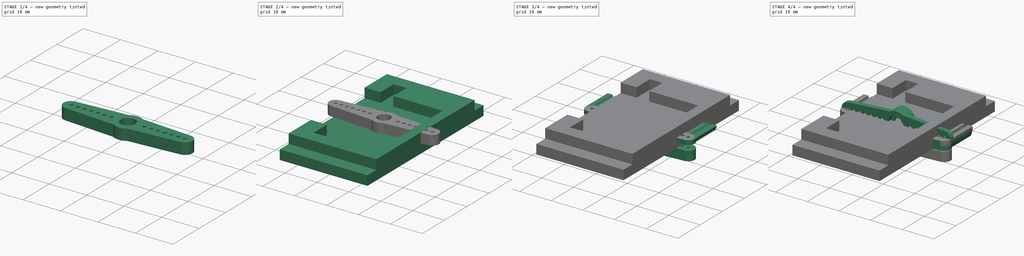
[diagram: build sequence overview — one tinted view per stage of 4, left to right]
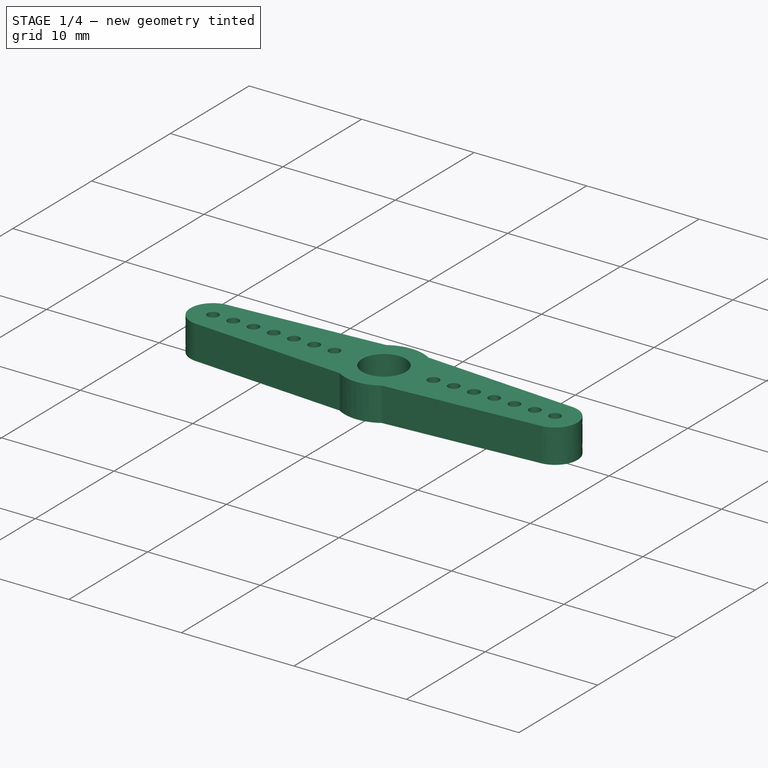
[diagram: stage 1 of 4 — iso view after this stage's code; geometry added in this stage tinted green]
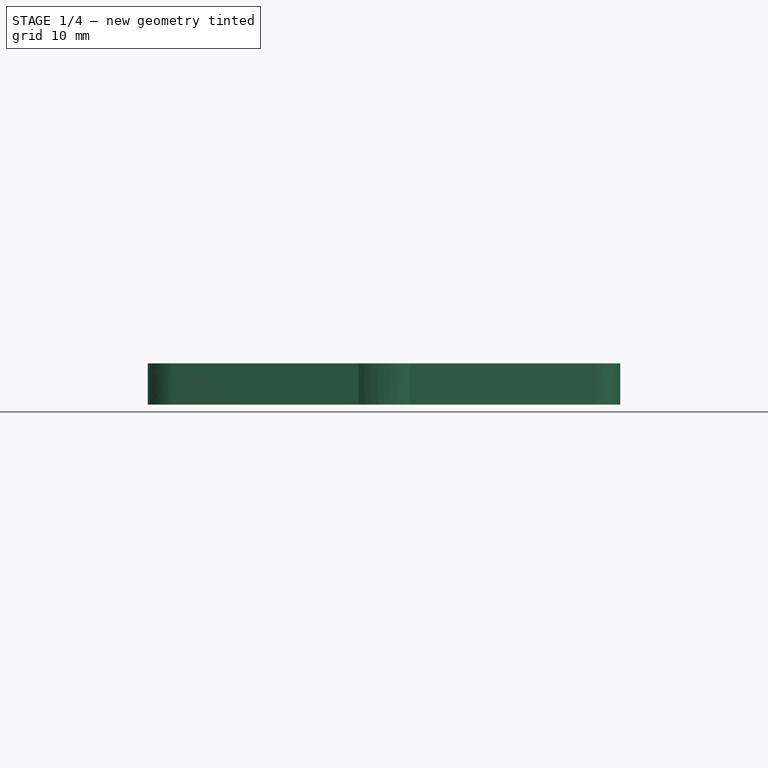
[diagram: stage 1 of 4 — front view after this stage's code; geometry added in this stage tinted green]
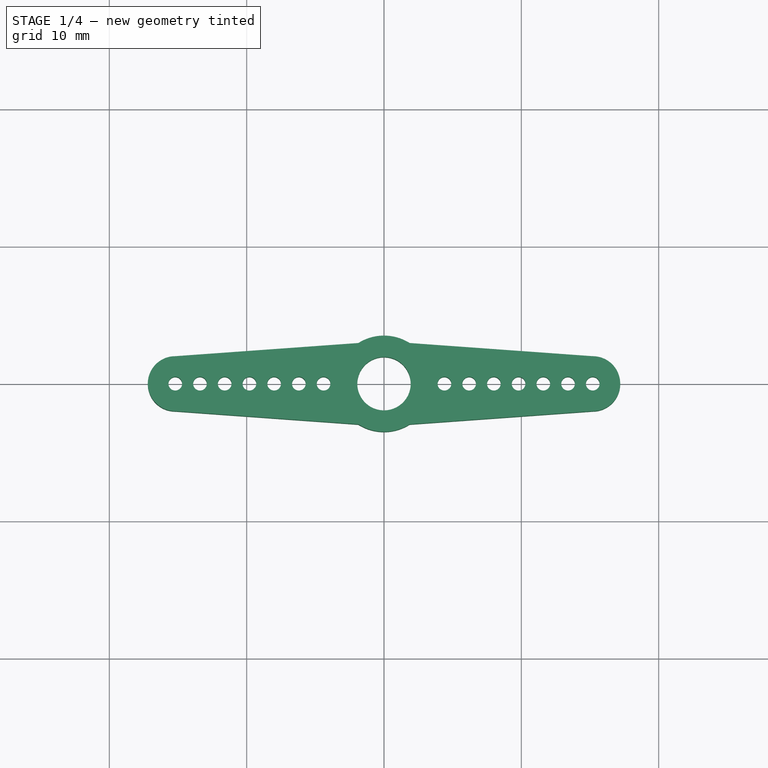
[diagram: stage 1 of 4 — top view after this stage's code; geometry added in this stage tinted green]
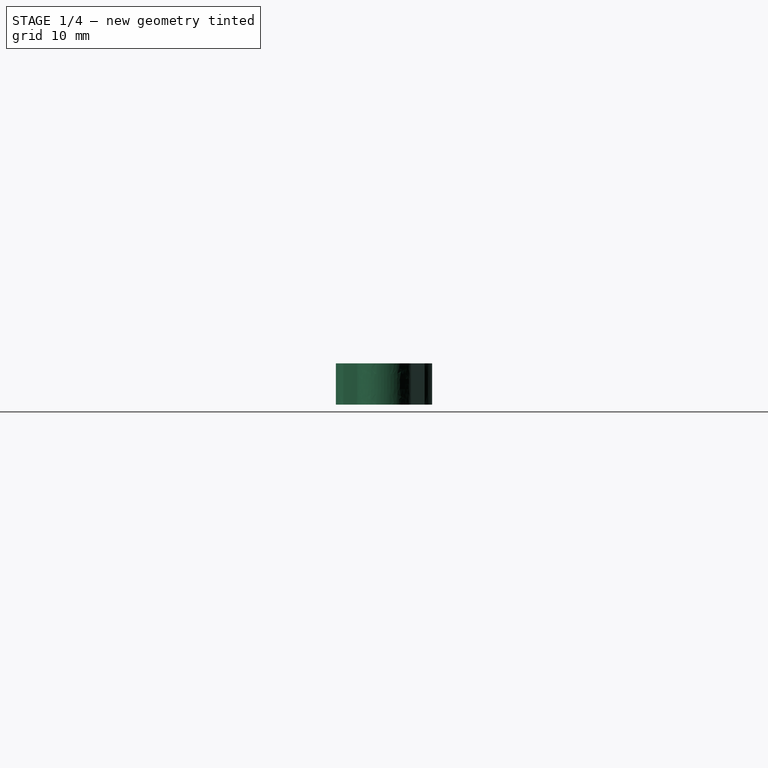
[diagram: stage 1 of 4 — right view after this stage's code; geometry added in this stage tinted green]
FCSTD DOCUMENT  (FreeCAD 0.18R16117 (Git))
Label: simpleServoBox
License: All rights reserved
LicenseURL: http://en.wikipedia.org/wiki/All_rights_reserved
objects: PartDesign::Body×3, Sketcher::SketchObject×3, Part::Feature×2, PartDesign::FeatureBase×2, Part::Box×2, PartDesign::Pad×2, Part::Fuse×2, App::Part×1, Part::MultiCommon×1, Part::FeaturePython×1
note: 20 computed .brp shape members not serialized (recipe doc carries the construction recipe); baked Part::Feature solids carry a one-line shape summary decoded from their .brp

FEATURE [Sketcher::SketchObject] Sketch
  sketch-geometry (38):
    g0: BSplineCurve PolesCount=3 KnotsCount=2 Degree=2 IsPeriodic=0
    g1: BSplineCurve PolesCount=3 KnotsCount=2 Degree=2 IsPeriodic=0
    g2: BSplineCurve PolesCount=3 KnotsCount=2 Degree=2 IsPeriodic=0
    g3: BSplineCurve PolesCount=3 KnotsCount=2 Degree=2 IsPeriodic=0
    g4: BSplineCurve PolesCount=5 KnotsCount=3 Degree=2 IsPeriodic=0
    g5: BSplineCurve PolesCount=5 KnotsCount=3 Degree=2 IsPeriodic=0
    g6: BSplineCurve PolesCount=5 KnotsCount=3 Degree=2 IsPeriodic=0
    g7: BSplineCurve PolesCount=5 KnotsCount=3 Degree=2 IsPeriodic=0
    g8: BSplineCurve PolesCount=5 KnotsCount=3 Degree=2 IsPeriodic=0
    g9: BSplineCurve PolesCount=5 KnotsCount=3 Degree=2 IsPeriodic=0
    g10: BSplineCurve PolesCount=5 KnotsCount=3 Degree=2 IsPeriodic=0
    g11: BSplineCurve PolesCount=5 KnotsCount=3 Degree=2 IsPeriodic=0
    g12: BSplineCurve PolesCount=5 KnotsCount=3 Degree=2 IsPeriodic=0
    g13: BSplineCurve PolesCount=5 KnotsCount=3 Degree=2 IsPeriodic=0
    g14: BSplineCurve PolesCount=5 KnotsCount=3 Degree=2 IsPeriodic=0
    g15: BSplineCurve PolesCount=5 KnotsCount=3 Degree=2 IsPeriodic=0
    g16: BSplineCurve PolesCount=5 KnotsCount=3 Degree=2 IsPeriodic=0
    g17: BSplineCurve PolesCount=5 KnotsCount=3 Degree=2 IsPeriodic=0
    g18: BSplineCurve PolesCount=5 KnotsCount=3 Degree=2 IsPeriodic=0
    g19: BSplineCurve PolesCount=5 KnotsCount=3 Degree=2 IsPeriodic=0
    g20: BSplineCurve PolesCount=5 KnotsCount=3 Degree=2 IsPeriodic=0
    g21: BSplineCurve PolesCount=5 KnotsCount=3 Degree=2 IsPeriodic=0
    g22: BSplineCurve PolesCount=5 KnotsCount=3 Degree=2 IsPeriodic=0
    g23: BSplineCurve PolesCount=5 KnotsCount=3 Degree=2 IsPeriodic=0
    g24: BSplineCurve PolesCount=5 KnotsCount=3 Degree=2 IsPeriodic=0
    g25: BSplineCurve PolesCount=5 KnotsCount=3 Degree=2 IsPeriodic=0
    g26: BSplineCurve PolesCount=5 KnotsCount=3 Degree=2 IsPeriodic=0
    g27: BSplineCurve PolesCount=5 KnotsCount=3 Degree=2 IsPeriodic=0
    g28: BSplineCurve PolesCount=5 KnotsCount=3 Degree=2 IsPeriodic=0
    g29: BSplineCurve PolesCount=5 KnotsCount=3 Degree=2 IsPeriodic=0
    g30: BSplineCurve PolesCount=5 KnotsCount=3 Degree=2 IsPeriodic=0
    g31: BSplineCurve PolesCount=5 KnotsCount=3 Degree=2 IsPeriodic=0
    g32: BSplineCurve PolesCount=2 KnotsCount=2 Degree=1 IsPeriodic=0
    g33: BSplineCurve PolesCount=5 KnotsCount=3 Degree=2 IsPeriodic=0
    g34: BSplineCurve PolesCount=2 KnotsCount=2 Degree=1 IsPeriodic=0
    g35: BSplineCurve PolesCount=2 KnotsCount=2 Degree=1 IsPeriodic=0
    g36: BSplineCurve PolesCount=5 KnotsCount=3 Degree=2 IsPeriodic=0
    g37: BSplineCurve PolesCount=2 KnotsCount=2 Degree=1 IsPeriodic=0
  constraints (38):
    c: Coincident(g32,g33)
    c: Coincident(g33,g34)
    c: Coincident(g4,g5)
    c: Coincident(g4,g5)
    c: Coincident(g8,g9)
    c: Coincident(g8,g9)
    c: Coincident(g10,g11)
    c: Coincident(g10,g11)
    c: Coincident(g12,g13)
    c: Coincident(g12,g13)
    c: Coincident(g14,g15)
    c: Coincident(g14,g15)
    c: Coincident(g16,g17)
    c: Coincident(g16,g17)
    c: Coincident(g18,g19)
    c: Coincident(g18,g19)
    c: Coincident(g2,g32)
    c: Coincident(g2,g3)
    c: Coincident(g3,g37)
    c: Coincident(g1,g34)
    c: Coincident(g0,g1)
    c: Coincident(g0,g35)
    c: Coincident(g30,g31)
    c: Coincident(g30,g31)
    c: Coincident(g28,g29)
    c: Coincident(g28,g29)
    c: Coincident(g26,g27)
    c: Coincident(g26,g27)
    c: Coincident(g24,g25)
    c: Coincident(g24,g25)
    c: Coincident(g22,g23)
    c: Coincident(g22,g23)
    c: Coincident(g20,g21)
    c: Coincident(g20,g21)
    c: Coincident(g6,g7)
    c: Coincident(g6,g7)
    c: Coincident(g36,g37)
    c: Coincident(g35,g36)
FEATURE [Sketcher::SketchObject] CopySketch
  sketch-geometry (39):
    g0: BSplineCurve PolesCount=3 KnotsCount=2 Degree=2 IsPeriodic=0
    g1: BSplineCurve PolesCount=3 KnotsCount=2 Degree=2 IsPeriodic=0
    g2: BSplineCurve PolesCount=3 KnotsCount=2 Degree=2 IsPeriodic=0
    g3: BSplineCurve PolesCount=3 KnotsCount=2 Degree=2 IsPeriodic=0
    g4: BSplineCurve PolesCount=5 KnotsCount=3 Degree=2 IsPeriodic=0
    g5: BSplineCurve PolesCount=5 KnotsCount=3 Degree=2 IsPeriodic=0
    g6: BSplineCurve PolesCount=5 KnotsCount=3 Degree=2 IsPeriodic=0
    g7: BSplineCurve PolesCount=5 KnotsCount=3 Degree=2 IsPeriodic=0
    g8: BSplineCurve PolesCount=5 KnotsCount=3 Degree=2 IsPeriodic=0
    g9: BSplineCurve PolesCount=5 KnotsCount=3 Degree=2 IsPeriodic=0
    g10: BSplineCurve PolesCount=5 KnotsCount=3 Degree=2 IsPeriodic=0
    g11: BSplineCurve PolesCount=5 KnotsCount=3 Degree=2 IsPeriodic=0
    g12: BSplineCurve PolesCount=5 KnotsCount=3 Degree=2 IsPeriodic=0
    g13: BSplineCurve PolesCount=5 KnotsCount=3 Degree=2 IsPeriodic=0
    g14: BSplineCurve PolesCount=5 KnotsCount=3 Degree=2 IsPeriodic=0
    g15: BSplineCurve PolesCount=5 KnotsCount=3 Degree=2 IsPeriodic=0
    g16: BSplineCurve PolesCount=5 KnotsCount=3 Degree=2 IsPeriodic=0
    g17: BSplineCurve PolesCount=5 KnotsCount=3 Degree=2 IsPeriodic=0
    g18: BSplineCurve PolesCount=5 KnotsCount=3 Degree=2 IsPeriodic=0
    g19: BSplineCurve PolesCount=5 KnotsCount=3 Degree=2 IsPeriodic=0
    g20: BSplineCurve PolesCount=5 KnotsCount=3 Degree=2 IsPeriodic=0
    g21: BSplineCurve PolesCount=5 KnotsCount=3 Degree=2 IsPeriodic=0
    g22: BSplineCurve PolesCount=5 KnotsCount=3 Degree=2 IsPeriodic=0
    g23: BSplineCurve PolesCount=5 KnotsCount=3 Degree=2 IsPeriodic=0
    g24: BSplineCurve PolesCount=5 KnotsCount=3 Degree=2 IsPeriodic=0
    g25: BSplineCurve PolesCount=5 KnotsCount=3 Degree=2 IsPeriodic=0
    g26: BSplineCurve PolesCount=5 KnotsCount=3 Degree=2 IsPeriodic=0
    g27: BSplineCurve PolesCount=5 KnotsCount=3 Degree=2 IsPeriodic=0
    g28: BSplineCurve PolesCount=5 KnotsCount=3 Degree=2 IsPeriodic=0
    g29: BSplineCurve PolesCount=5 KnotsCount=3 Degree=2 IsPeriodic=0
    g30: BSplineCurve PolesCount=5 KnotsCount=3 Degree=2 IsPeriodic=0
    g31: BSplineCurve PolesCount=5 KnotsCount=3 Degree=2 IsPeriodic=0
    g32: BSplineCurve PolesCount=2 KnotsCount=2 Degree=1 IsPeriodic=0
    g33: BSplineCurve PolesCount=5 KnotsCount=3 Degree=2 IsPeriodic=0
    g34: BSplineCurve PolesCount=2 KnotsCount=2 Degree=1 IsPeriodic=0
    g35: BSplineCurve PolesCount=2 KnotsCount=2 Degree=1 IsPeriodic=0
    g36: BSplineCurve PolesCount=5 KnotsCount=3 Degree=2 IsPeriodic=0
    g37: BSplineCurve PolesCount=2 KnotsCount=2 Degree=1 IsPeriodic=0
    g38: Circle CenterX=0 CenterY=0 CenterZ=0 NormalX=0 NormalY=0 NormalZ=1 AngleXU=0 Radius=1.94479
  constraints (39):
    c: Coincident(g32,g33)
    c: Coincident(g33,g34)
    c: Coincident(g4,g5)
    c: Coincident(g4,g5)
    c: Coincident(g8,g9)
    c: Coincident(g8,g9)
    c: Coincident(g10,g11)
    c: Coincident(g10,g11)
    c: Coincident(g12,g13)
    c: Coincident(g12,g13)
    c: Coincident(g14,g15)
    c: Coincident(g14,g15)
    c: Coincident(g16,g17)
    c: Coincident(g16,g17)
    c: Coincident(g18,g19)
    c: Coincident(g18,g19)
    c: Coincident(g2,g32)
    c: Coincident(g2,g3)
    c: Coincident(g3,g37)
    c: Coincident(g1,g34)
    c: Coincident(g0,g1)
    c: Coincident(g0,g35)
    c: Coincident(g30,g31)
    c: Coincident(g30,g31)
    c: Coincident(g28,g29)
    c: Coincident(g28,g29)
    c: Coincident(g26,g27)
    c: Coincident(g26,g27)
    c: Coincident(g24,g25)
    c: Coincident(g24,g25)
    c: Coincident(g22,g23)
    c: Coincident(g22,g23)
    c: Coincident(g20,g21)
    c: Coincident(g20,g21)
    c: Coincident(g6,g7)
    c: Coincident(g6,g7)
    c: Coincident(g36,g37)
    c: Coincident(g35,g36)
    c: Coincident(g38,g-1)
FEATURE [PartDesign::Pad] Pad  label="horn"
  Length = 3
  Length2 = 0
  Profile = -> CopySketch
  Type = 0
FEATURE [PartDesign::FeatureBase] BaseFeature001
  BaseFeature = -> Pad
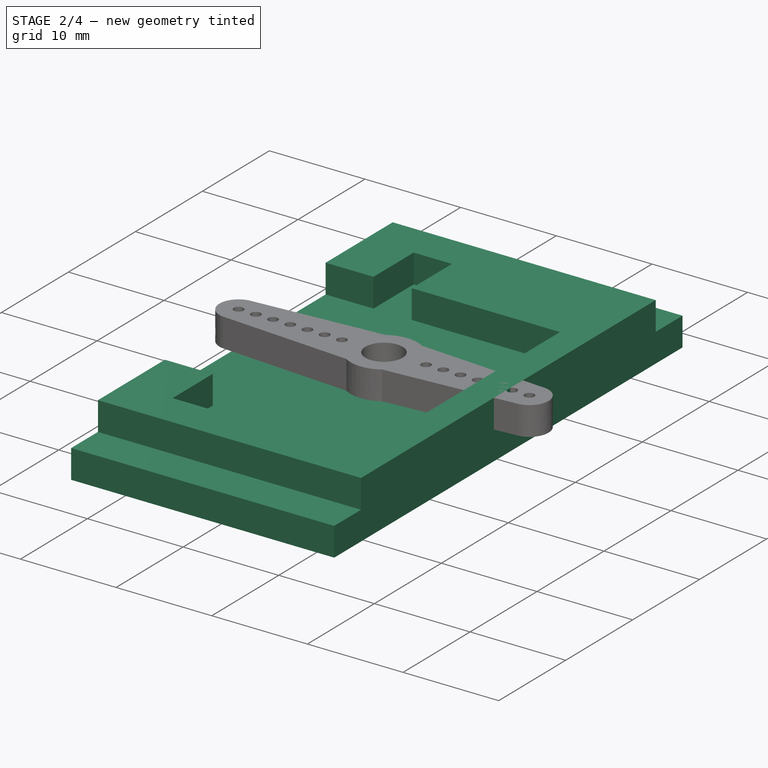
[diagram: stage 2 of 4 — iso view after this stage's code; geometry added in this stage tinted green]
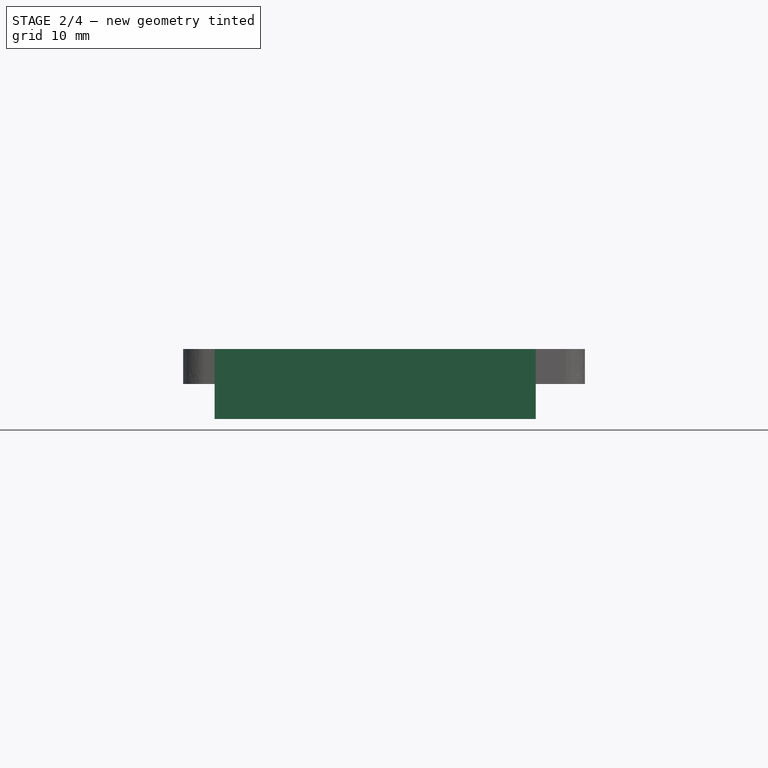
[diagram: stage 2 of 4 — front view after this stage's code; geometry added in this stage tinted green]
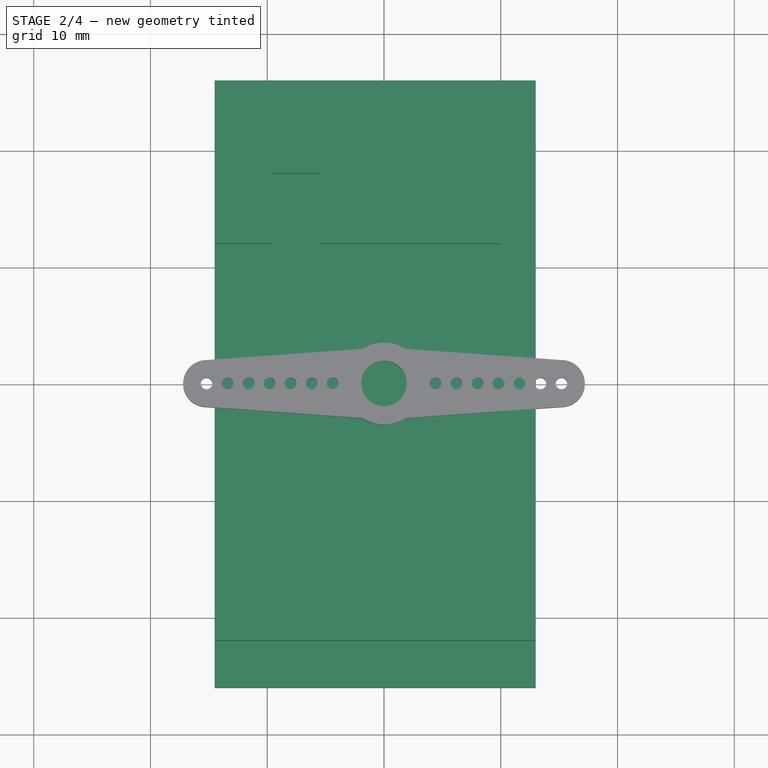
[diagram: stage 2 of 4 — top view after this stage's code; geometry added in this stage tinted green]
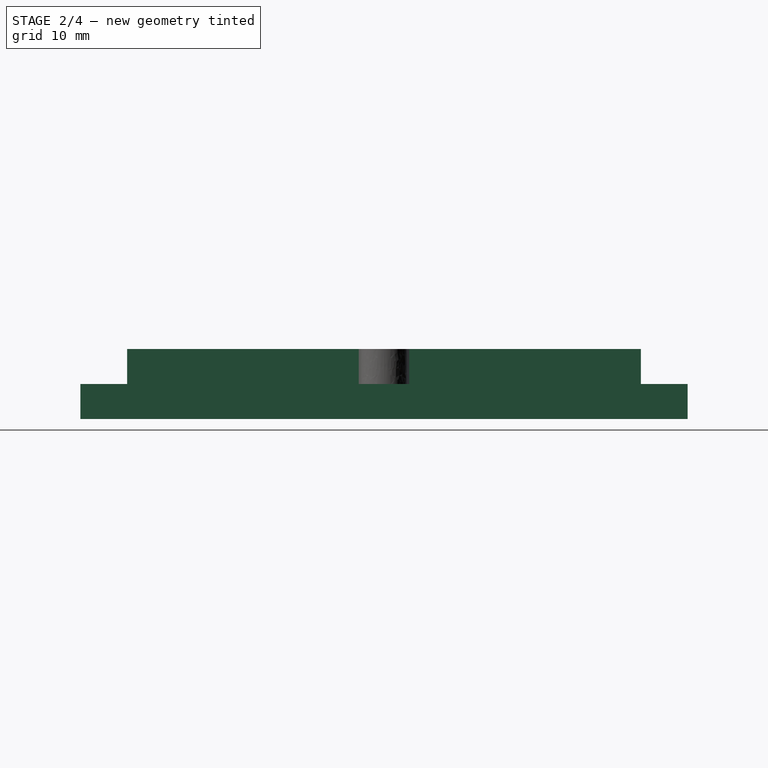
[diagram: stage 2 of 4 — right view after this stage's code; geometry added in this stage tinted green]
FEATURE [Sketcher::SketchObject] Sketch001
  MapMode = 5
  Support = -> [XY_Plane004]
  sketch-geometry (16):
    g0: LineSegment StartX=10 StartY=12 StartZ=0 EndX=10 EndY=-12 EndZ=0
    g1: LineSegment StartX=10 StartY=12 StartZ=0 EndX=-5.5 EndY=12 EndZ=0
    g2: LineSegment StartX=-5.5 StartY=12 StartZ=0 EndX=-5.5 EndY=18 EndZ=0
    g3: LineSegment StartX=-5.5 StartY=18 StartZ=0 EndX=-9.5 EndY=18 EndZ=0
    g4: LineSegment StartX=-9.5 StartY=18 StartZ=0 EndX=-9.5 EndY=12 EndZ=0
    g5: LineSegment StartX=10 StartY=-12 StartZ=0 EndX=-5.5 EndY=-12 EndZ=0
    g6: LineSegment StartX=-5.5 StartY=-12 StartZ=0 EndX=-5.5 EndY=-18 EndZ=0
    g7: LineSegment StartX=-5.5 StartY=-18 StartZ=0 EndX=-9.5 EndY=-18 EndZ=0
    g8: LineSegment StartX=-9.5 StartY=-18 StartZ=0 EndX=-9.5 EndY=-12 EndZ=0
    g9: LineSegment StartX=-9.5 StartY=-12 StartZ=0 EndX=-14.5 EndY=-12 EndZ=0
    g10: LineSegment StartX=-14.5 StartY=-12 StartZ=0 EndX=-14.5 EndY=-22 EndZ=0
    g11: LineSegment StartX=-14.5 StartY=-22 StartZ=0 EndX=13 EndY=-22 EndZ=0
    g12: LineSegment StartX=13 StartY=-22 StartZ=0 EndX=13 EndY=22 EndZ=0
    g13: LineSegment StartX=13 StartY=22 StartZ=0 EndX=-14.5 EndY=22 EndZ=0
    g14: LineSegment StartX=-14.5 StartY=22 StartZ=0 EndX=-14.5 EndY=12 EndZ=0
    g15: LineSegment StartX=-14.5 StartY=12 StartZ=0 EndX=-9.5 EndY=12 EndZ=0
  constraints (40):
    c: Distance(g0) = 24
    c: Distance(g1) = 15.5
    c: Distance(g2) = 6
    c: Coincident(g1,g2)
    c: Coincident(g0,g1)
    c: Distance(g3) = 4
    c: Coincident(g3,g2)
    c: Distance(g4) = 6
    c: Perpendicular(g3,g4)
    c: Perpendicular(g3,g2)
    c: Perpendicular(g1,g2)
    c: Perpendicular(g0,g1)
    c: Coincident(g3,g4)
    c: Symmetric(g0,g0,g-1)
    c: Symmetric(g1,g5,g-1)
    c: Coincident(g5,g6)
    c: Coincident(g0,g5)
    c: Symmetric(g6,g2,g-1)
    c: Coincident(g7,g6)
    c: Symmetric(g7,g3,g-1)
    c: Coincident(g8,g7)
    c: Symmetric(g8,g4,g-1)
    c: Coincident(g9,g10)
    c: Coincident(g10,g11)
    c: Coincident(g11,g12)
    c: Coincident(g12,g13)
    c: Coincident(g13,g14)
    c: Coincident(g14,g15)
    c: Coincident(g15,g4)
    c: Coincident(g9,g8)
    c: Perpendicular(g4,g15)
    c: Perpendicular(g14,g15)
    c: Perpendicular(g13,g14)
    c: Symmetric(g14,g9,g-1)
    c: Symmetric(g10,g13,g-1)
    c: Symmetric(g12,g11,g-1)
    c: Distance(g15) = 5
    c: Distance(g14) = 10
    c: Distance(g0,g12) = 3
    c: Distance(g-1,g0) = 10
FEATURE [PartDesign::Pad] Pad001
  Length = 3
  Length2 = 100
  Profile = -> Sketch001
  Type = 0
FEATURE [PartDesign::Body] Body001  label="servohousing"
  Group = -> [Sketch001,Pad001]
  Origin = -> Origin004
  Tip = -> Pad001
FEATURE [Part::Box] Box001  label="Cube001"
  AttacherType = Attacher::AttachEngine3D
  Height = 3
  Length = 27.5
  Placement = pos=(-14.5,-26,-3) rot=(0,0,1;0rad)
  Width = 52
FEATURE [Part::Fuse] Fusion
  Base = -> Body001
  Tool = -> Box001
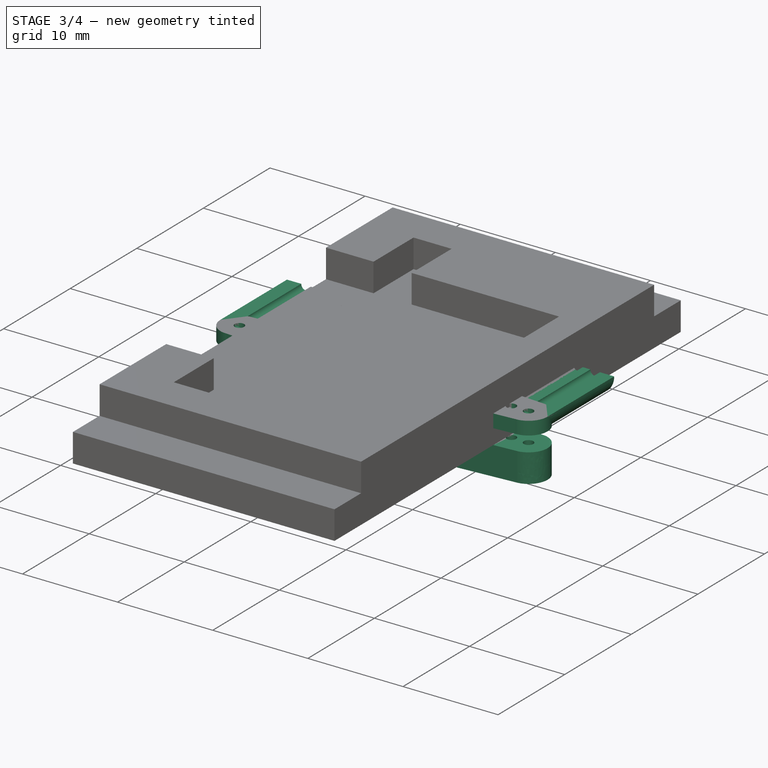
[diagram: stage 3 of 4 — iso view after this stage's code; geometry added in this stage tinted green]
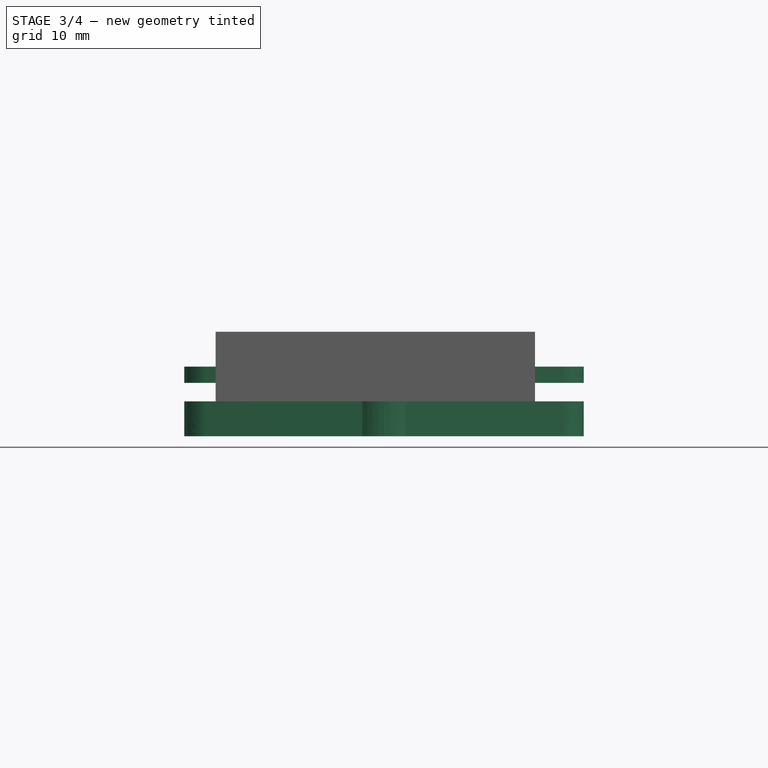
[diagram: stage 3 of 4 — front view after this stage's code; geometry added in this stage tinted green]
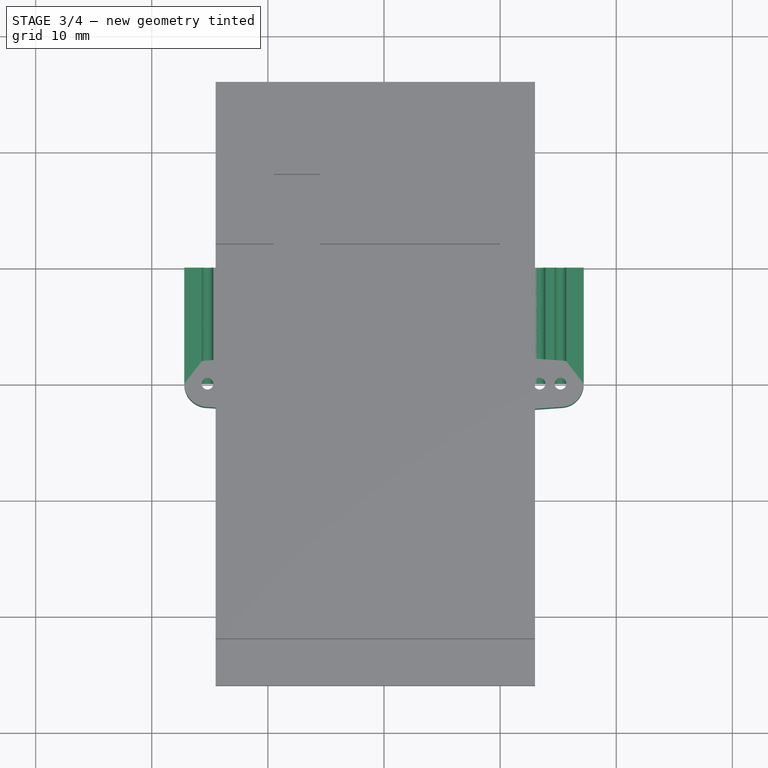
[diagram: stage 3 of 4 — top view after this stage's code; geometry added in this stage tinted green]
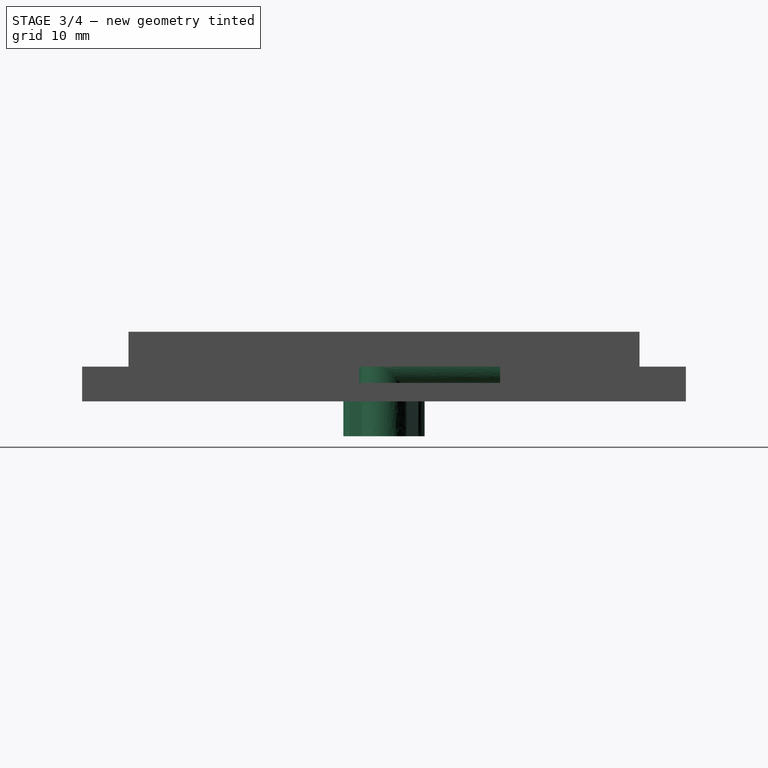
[diagram: stage 3 of 4 — right view after this stage's code; geometry added in this stage tinted green]
FEATURE [App::Part] microservoAssembly
  Group = -> [Part__Feature,BaseFeature]
  Origin = -> Origin
FEATURE [Part::Box] Box  label="Cube"
  AttacherType = Attacher::AttachEngine3D
  Height = 1.4
  Length = 40
  Placement = pos=(-20,-10,-1.4) rot=(0,0,1;0rad)
  Width = 20
FEATURE [Part::MultiCommon] Common
  Shapes = -> [Body,Box]
FEATURE [PartDesign::Body] Body003
  BaseFeature = -> Pad
  Group = -> [BaseFeature001]
  Origin = -> Origin006
  Placement = pos=(0,0,-6) rot=(0,0,1;0rad)
  Tip = -> BaseFeature001
FEATURE [Part::Fuse] Fusion001
  Base = -> Fusion
  Tool = -> Body003
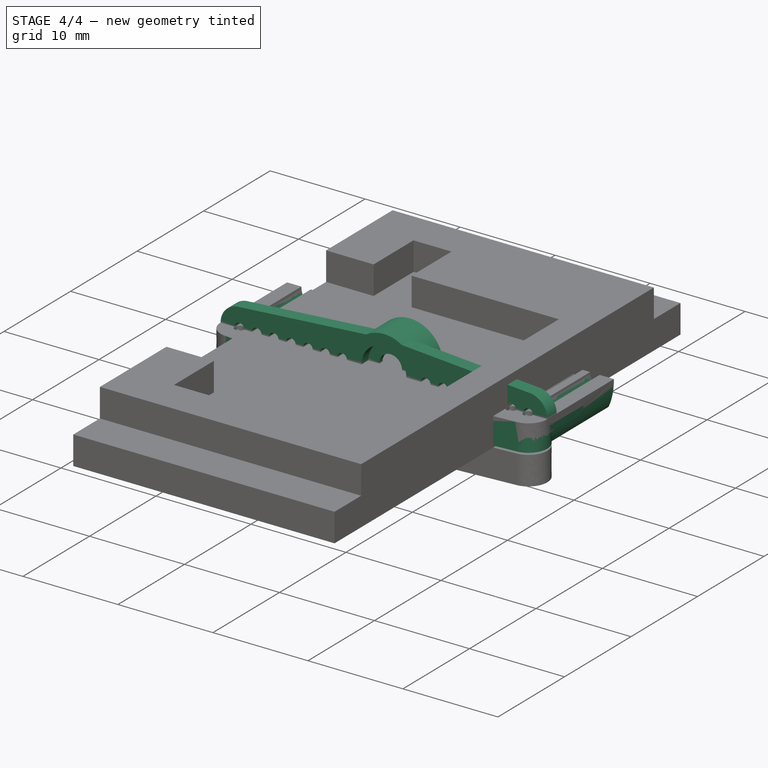
[diagram: stage 4 of 4 — iso view after this stage's code; geometry added in this stage tinted green]
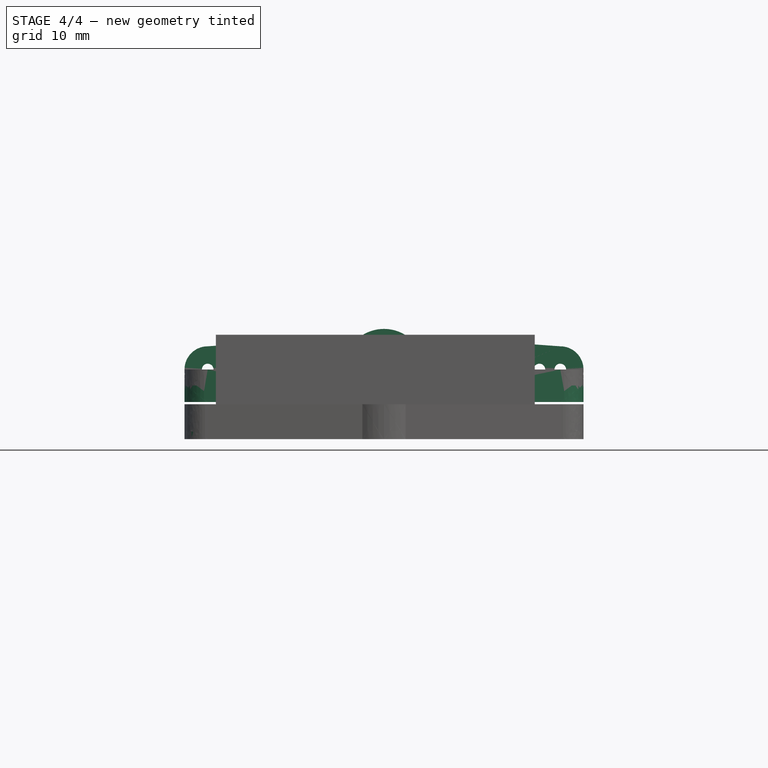
[diagram: stage 4 of 4 — front view after this stage's code; geometry added in this stage tinted green]
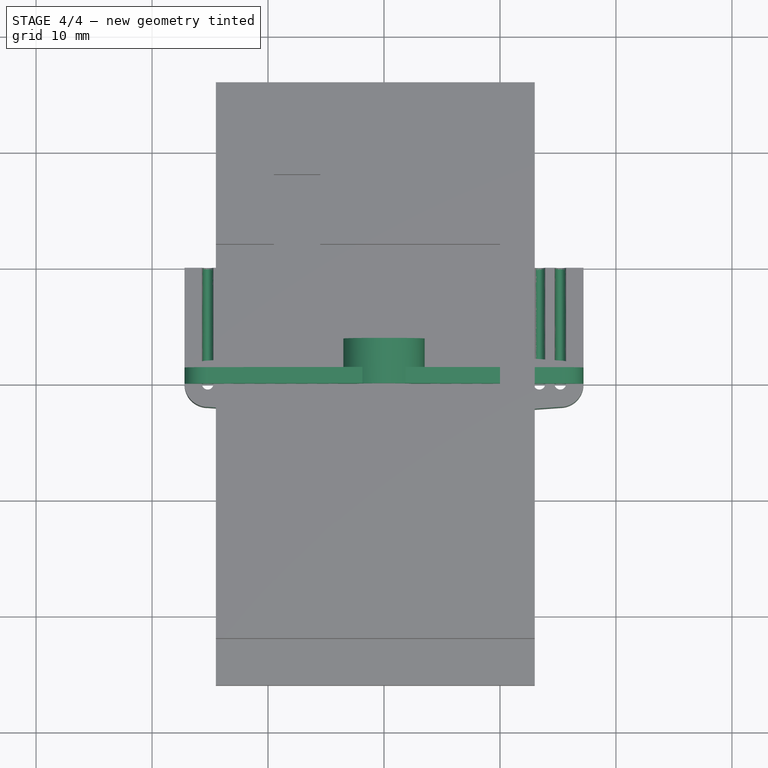
[diagram: stage 4 of 4 — top view after this stage's code; geometry added in this stage tinted green]
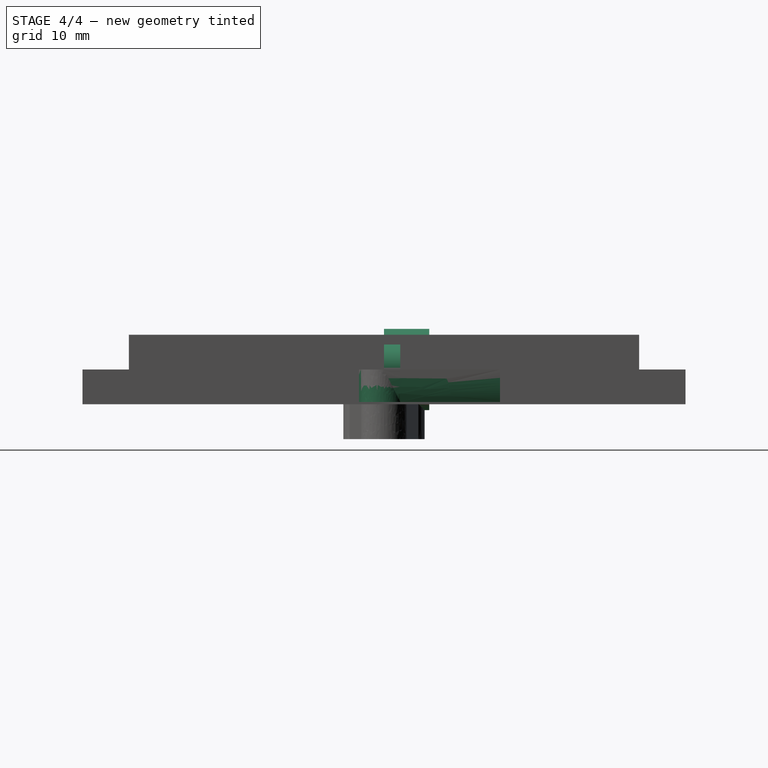
[diagram: stage 4 of 4 — right view after this stage's code; geometry added in this stage tinted green]
FEATURE [Part::Feature] Part__Feature  label="microservoSG90"
  Placement = pos=(7.80939,3.36548,26.0766) rot=(0,0,1;0rad)
  shape: bbox 32.38 x 29.8 x 13.42 mm, 178 faces (baked)
FEATURE [Part::Feature] Part__Feature001  label="microservoArm_A2"
  Placement = pos=(2.70939,34.6655,26.0766) rot=(0.000375,0,1;3.14159rad)
  shape: bbox 34.4 x 3.9 x 7 mm, 48 faces (baked)
FEATURE [PartDesign::Body] Body
  Origin = -> Origin001
  Placement = pos=(0,0,0) rot=(-1,0,0;1.5708rad)
FEATURE [PartDesign::FeatureBase] BaseFeature
  BaseFeature = -> Part__Feature001
FEATURE [Part::FeaturePython] Clone  label="Common001"  # Draft clone (typed FeaturePython)
  AttacherType = Attacher::AttachEngine3D
  Fuse = false
  Objects = -> [Common]
  Scale = (1,1,2)
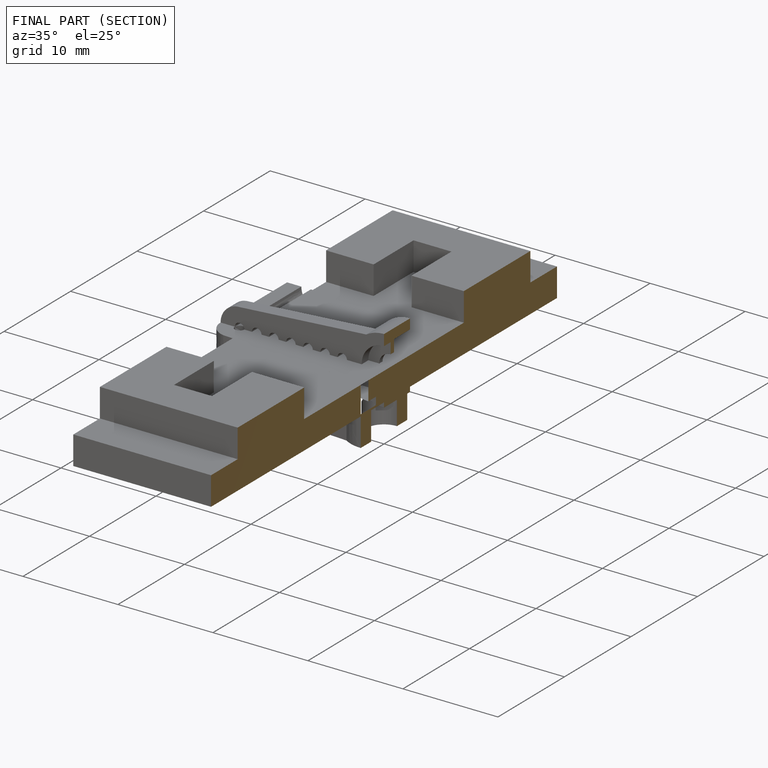
[diagram: finished part — half-section view (interior)]
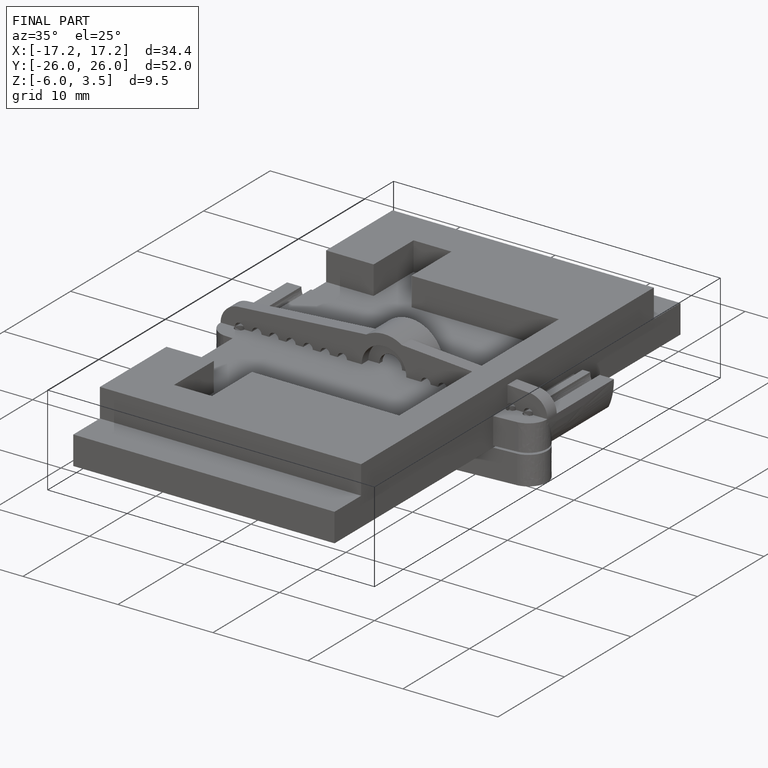
[diagram: finished part — iso view with bounding-box wireframe]
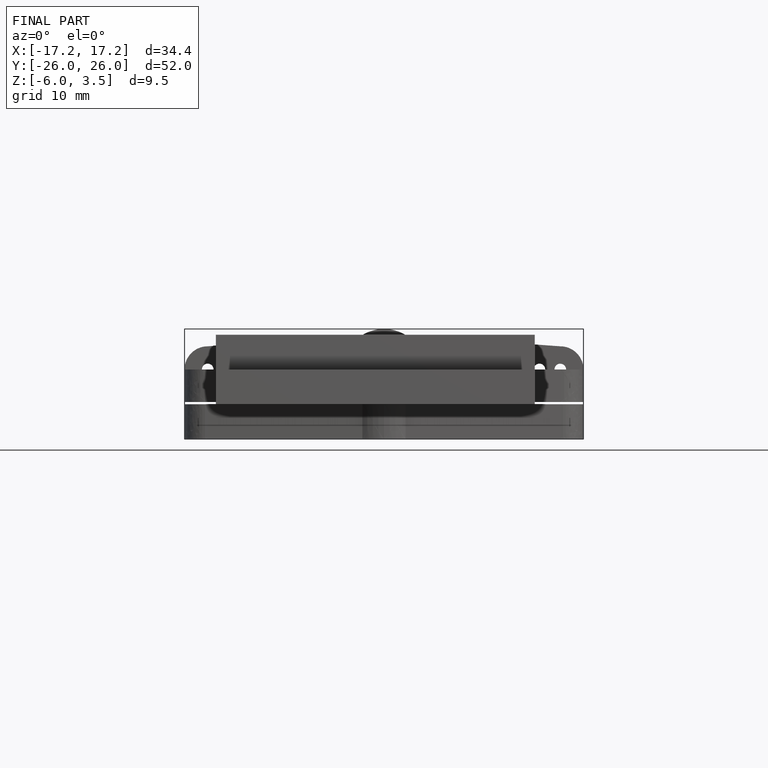
[diagram: finished part — front view with bounding-box wireframe]
